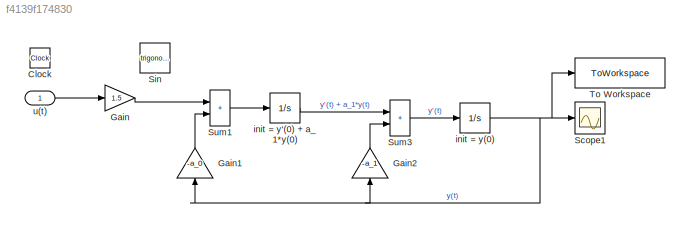
MODEL slx_f4139f174830
KIND model
CONFIG AbsTol = auto
CONFIG EnableMultiTasking = off
CONFIG FixedStep = 0.0001
CONFIG MaxStep = auto
CONFIG MinStep = auto
CONFIG RelTol = 1e-3
CONFIG SampleTimeConstraint = Unconstrained
CONFIG SolverName = FixedStepAuto
CONFIG StartTime = 0.0
CONFIG StopTime = 10.0
BLOCK [Clock] Clock
BLOCK [Gain] Gain
  Gain = 1.5
BLOCK [Gain] Gain1
  Gain = -a_0
  NameLocation = right
BLOCK [Gain] Gain2
  Gain = -a_1
  NameLocation = right
BLOCK [Scope] Scope1
  Floating = off
  NumInputPorts = 1
  Ports = [1]
  ScopeSpecificationString = Simulink.scopes.TimeScopeBlockCfg('CurrentConfiguration', extmgr.ConfigurationSet(extmgr.Configuration('Core','General UI',true),extmgr.Configuration('Core','Source UI',true),extmgr.Configuration('Sources','WiredSimulink',true,'DataLoggingVariableName','ScopeData1'),extmgr.Configuration('Visuals','Time Domain',true,'SerializedDisplays',{struct('MinYLimReal','-10837.20623','MaxYLimReal','63345.5712...<+1393ch>
BLOCK [Trigonometry] Sin
  Ports = [1, 1]
BLOCK [Sum] Sum1
  IconShape = rectangular
  Ports = [2, 1]
BLOCK [Sum] Sum3
  IconShape = rectangular
  Ports = [2, 1]
BLOCK [ToWorkspace] To Workspace
  FixptAsFi = on
  MaxDataPoints = inf
  Ports = [1]
  SampleTime = -1
  SaveFormat = Timeseries
  VariableName = y
BLOCK [Integrator] init = y'(0) + a_1*y(0)
  InitialCondition = s2
  Ports = [1, 1]
BLOCK [Integrator] init = y(0)
  InitialCondition = s1
  Ports = [1, 1]
BLOCK [Inport] u(t)
LINE Gain1:1 -> Sum1:2
LINE Gain2:1 -> Sum3:2
LINE Gain:1 -> Sum1:1
LINE Sum1:1 -> init = y'(0) + a_1*y(0):1
LINE Sum3:1 -> init = y(0):1
LINE init = y'(0) + a_1*y(0):1 -> Sum3:1
NET init = y(0):1 -> Gain1:1, Gain2:1, Scope1:1, To Workspace:1
LINE u(t):1 -> Gain:1
note: NET lines group one-source signal fan-out (src -> all destinations, sorted); 1:1 wires keep LINE
